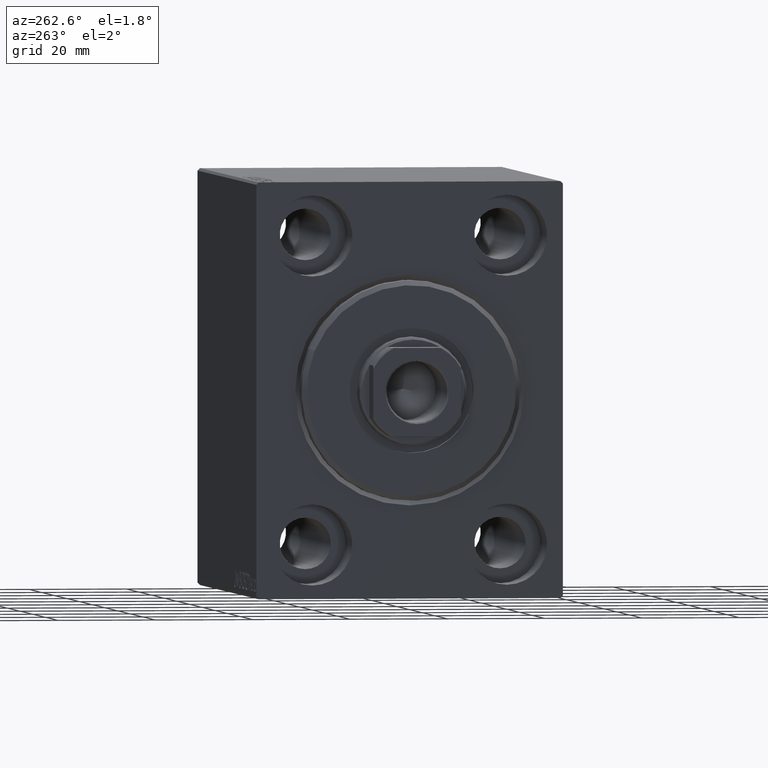
[diagram: clean part render]
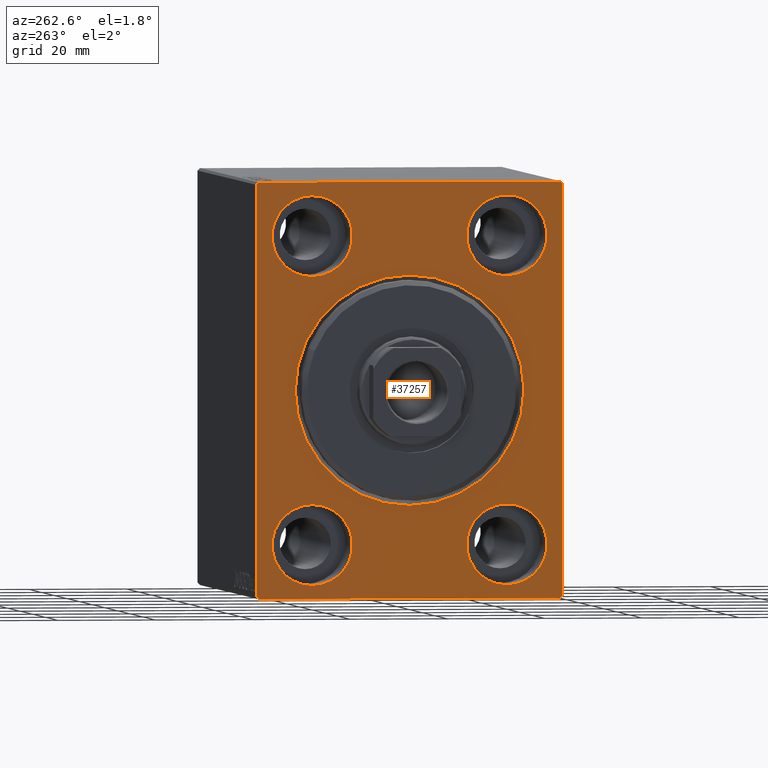
[diagram: same view with one face highlighted and labeled with its STEP entity id]
A machine part, auxiliary view. The second image highlights one B-rep face of the part: STEP entity #37257.
In plain terms, the highlighted planar face has unit normal (1, 0, 0).
Its self-contained STEP definition (entity closure, byte-faithful):
#207 = VERTEX_POINT ( 'NONE', #4660 ) ;
#1066 = ORIENTED_EDGE ( 'NONE', *, *, #25967, .F. ) ;
#1385 = CARTESIAN_POINT ( 'NONE',  ( 0.000000000000000000, -20.00000000000000355, -39.74999999999999289 ) ) ;
#1735 = DIRECTION ( 'NONE',  ( 1.000000000000000000, 0.000000000000000000, 0.000000000000000000 ) ) ;
#2210 = CARTESIAN_POINT ( 'NONE',  ( 0.000000000000000000, -19.99999999999999645, 31.50000000000000000 ) ) ;
#2308 = CIRCLE ( 'NONE', #24195, 8.249999999999992895 ) ;
#2932 = CARTESIAN_POINT ( 'NONE',  ( 0.000000000000000000, -31.50000000000000000, -42.00000000000002132 ) ) ;
#3009 = AXIS2_PLACEMENT_3D ( 'NONE', #37466, #10075, #27281 ) ;
#3612 = EDGE_CURVE ( 'NONE', #24326, #12554, #16258, .T. ) ;
#3616 = ORIENTED_EDGE ( 'NONE', *, *, #34001, .F. ) ;
#3667 = DIRECTION ( 'NONE',  ( -0.000000000000000000, 0.7071067811865376918, -0.7071067811865574537 ) ) ;
#3835 = VERTEX_POINT ( 'NONE', #27030 ) ;
#4030 = AXIS2_PLACEMENT_3D ( 'NONE', #18389, #11559, #32110 ) ;
#4573 = EDGE_CURVE ( 'NONE', #14653, #37526, #30688, .T. ) ;
#4660 = CARTESIAN_POINT ( 'NONE',  ( 0.000000000000000000, 31.00000000000002842, -42.50000000000000711 ) ) ;
#4705 = FACE_BOUND ( 'NONE', #33453, .T. ) ;
#4713 = VERTEX_POINT ( 'NONE', #5273 ) ;
#4748 = EDGE_CURVE ( 'NONE', #24999, #12858, #20451, .T. ) ;
#4978 = VECTOR ( 'NONE', #3667, 999.9999999999998863 ) ;
#5094 = ORIENTED_EDGE ( 'NONE', *, *, #3612, .T. ) ;
#5273 = CARTESIAN_POINT ( 'NONE',  ( 0.000000000000000000, -31.00000000000002842, -42.50000000000000711 ) ) ;
#5775 = VECTOR ( 'NONE', #39628, 1000.000000000000000 ) ;
#5918 = VERTEX_POINT ( 'NONE', #2932 ) ;
#7303 = CARTESIAN_POINT ( 'NONE',  ( 0.000000000000000000, -20.00000000000000355, -23.24999999999999289 ) ) ;
#7466 = CIRCLE ( 'NONE', #9589, 23.50000000000001776 ) ;
#7482 = DIRECTION ( 'NONE',  ( -1.000000000000000000, 0.000000000000000000, 0.000000000000000000 ) ) ;
#8268 = EDGE_CURVE ( 'NONE', #24999, #37526, #32121, .T. ) ;
#9589 = AXIS2_PLACEMENT_3D ( 'NONE', #31347, #1735, #14555 ) ;
#10075 = DIRECTION ( 'NONE',  ( -1.000000000000000000, 0.000000000000000000, 0.000000000000000000 ) ) ;
#10164 = AXIS2_PLACEMENT_3D ( 'NONE', #17206, #27598, #41101 ) ;
#10381 = ORIENTED_EDGE ( 'NONE', *, *, #23710, .F. ) ;
#10498 = EDGE_CURVE ( 'NONE', #37179, #15232, #26297, .T. ) ;
#10561 = DIRECTION ( 'NONE',  ( 0.000000000000000000, 0.000000000000000000, 1.000000000000000000 ) ) ;
#10694 = CARTESIAN_POINT ( 'NONE',  ( 0.000000000000000000, 20.00000000000000355, 39.74999999999999289 ) ) ;
#10780 = VECTOR ( 'NONE', #13268, 1000.000000000000000 ) ;
#11020 = CARTESIAN_POINT ( 'NONE',  ( 0.000000000000000000, 19.99999999999999645, -31.49999999999999289 ) ) ;
#11064 = AXIS2_PLACEMENT_3D ( 'NONE', #14053, #24220, #16708 ) ;
#11510 = ORIENTED_EDGE ( 'NONE', *, *, #27783, .F. ) ;
#11559 = DIRECTION ( 'NONE',  ( 1.000000000000000000, 0.000000000000000000, 0.000000000000000000 ) ) ;
#11846 = CARTESIAN_POINT ( 'NONE',  ( 0.000000000000000000, 0.000000000000000000, 0.000000000000000000 ) ) ;
#11920 = VERTEX_POINT ( 'NONE', #24545 ) ;
#12280 = DIRECTION ( 'NONE',  ( 1.000000000000000000, 0.000000000000000000, 0.000000000000000000 ) ) ;
#12554 = VERTEX_POINT ( 'NONE', #40806 ) ;
#12593 = ORIENTED_EDGE ( 'NONE', *, *, #26946, .F. ) ;
#12832 = ORIENTED_EDGE ( 'NONE', *, *, #41141, .F. ) ;
#12858 = VERTEX_POINT ( 'NONE', #42677 ) ;
#13014 = VECTOR ( 'NONE', #19556, 1000.000000000000114 ) ;
#13238 = CARTESIAN_POINT ( 'NONE',  ( 0.000000000000000000, -20.00000000000000355, -31.49999999999999289 ) ) ;
#13268 = DIRECTION ( 'NONE',  ( 0.000000000000000000, 1.000000000000000000, 0.000000000000000000 ) ) ;
#14043 = CARTESIAN_POINT ( 'NONE',  ( 0.000000000000000000, -31.50000000000000000, 41.99999999999997868 ) ) ;
#14053 = CARTESIAN_POINT ( 'NONE',  ( 0.000000000000000000, 19.99999999999999645, -31.49999999999999289 ) ) ;
#14555 = DIRECTION ( 'NONE',  ( 0.000000000000000000, 0.000000000000000000, -1.000000000000000000 ) ) ;
#14653 = VERTEX_POINT ( 'NONE', #14043 ) ;
#15164 = AXIS2_PLACEMENT_3D ( 'NONE', #20362, #20805, #33661 ) ;
#15232 = VERTEX_POINT ( 'NONE', #7303 ) ;
#15470 = EDGE_CURVE ( 'NONE', #4713, #5918, #19342, .T. ) ;
#15517 = FACE_BOUND ( 'NONE', #37494, .T. ) ;
#15523 = DIRECTION ( 'NONE',  ( 0.000000000000000000, 0.000000000000000000, -1.000000000000000000 ) ) ;
#15904 = DIRECTION ( 'NONE',  ( -1.000000000000000000, 0.000000000000000000, 0.000000000000000000 ) ) ;
#16095 = EDGE_LOOP ( 'NONE', ( #3616, #12832 ) ) ;
#16118 = CARTESIAN_POINT ( 'NONE',  ( 0.000000000000000000, -19.99999999999999645, 23.25000000000000355 ) ) ;
#16119 = ORIENTED_EDGE ( 'NONE', *, *, #15470, .T. ) ;
#16237 = CARTESIAN_POINT ( 'NONE',  ( 0.000000000000000000, -31.00000000000002842, -42.50000000000000711 ) ) ;
#16258 = CIRCLE ( 'NONE', #37440, 23.50000000000001776 ) ;
#16322 = DIRECTION ( 'NONE',  ( -1.000000000000000000, 0.000000000000000000, 0.000000000000000000 ) ) ;
#16564 = CIRCLE ( 'NONE', #15164, 8.249999999999992895 ) ;
#16648 = DIRECTION ( 'NONE',  ( 0.000000000000000000, -0.7071067811865573427, -0.7071067811865376918 ) ) ;
#16708 = DIRECTION ( 'NONE',  ( 0.000000000000000000, 0.000000000000000000, 1.000000000000000000 ) ) ;
#16923 = EDGE_LOOP ( 'NONE', ( #27704, #27215 ) ) ;
#17206 = CARTESIAN_POINT ( 'NONE',  ( 0.000000000000000000, 20.00000000000000355, 31.50000000000000000 ) ) ;
#17393 = CARTESIAN_POINT ( 'NONE',  ( 0.000000000000000000, 19.99999999999999645, -23.24999999999999289 ) ) ;
#17400 = EDGE_CURVE ( 'NONE', #19836, #36899, #16564, .T. ) ;
#17856 = DIRECTION ( 'NONE',  ( 0.000000000000000000, 0.000000000000000000, 1.000000000000000000 ) ) ;
#18389 = CARTESIAN_POINT ( 'NONE',  ( 0.000000000000000000, 0.000000000000000000, 0.000000000000000000 ) ) ;
#18892 = EDGE_CURVE ( 'NONE', #15232, #37179, #28712, .T. ) ;
#19206 = EDGE_CURVE ( 'NONE', #11920, #207, #28899, .T. ) ;
#19342 = LINE ( 'NONE', #16237, #13014 ) ;
#19556 = DIRECTION ( 'NONE',  ( -0.000000000000000000, -0.7071067811865376918, 0.7071067811865573427 ) ) ;
#19562 = EDGE_CURVE ( 'NONE', #14653, #5918, #25914, .T. ) ;
#19836 = VERTEX_POINT ( 'NONE', #16118 ) ;
#20028 = CARTESIAN_POINT ( 'NONE',  ( 0.000000000000000000, 31.00000000000000000, 42.50000000000000711 ) ) ;
#20222 = AXIS2_PLACEMENT_3D ( 'NONE', #2210, #15904, #43319 ) ;
#20362 = CARTESIAN_POINT ( 'NONE',  ( 0.000000000000000000, -19.99999999999999645, 31.50000000000000000 ) ) ;
#20451 = LINE ( 'NONE', #20028, #4978 ) ;
#20513 = DIRECTION ( 'NONE',  ( 0.000000000000000000, -1.632680918566406300E-16, 1.000000000000000000 ) ) ;
#20805 = DIRECTION ( 'NONE',  ( -1.000000000000000000, 0.000000000000000000, 0.000000000000000000 ) ) ;
#21285 = ORIENTED_EDGE ( 'NONE', *, *, #19562, .F. ) ;
#21784 = VERTEX_POINT ( 'NONE', #28160 ) ;
#22149 = FACE_BOUND ( 'NONE', #28532, .T. ) ;
#22445 = CARTESIAN_POINT ( 'NONE',  ( 0.000000000000000000, 20.00000000000000355, 31.50000000000000000 ) ) ;
#22552 = LINE ( 'NONE', #36051, #38387 ) ;
#22656 = DIRECTION ( 'NONE',  ( 0.000000000000000000, 0.000000000000000000, 1.000000000000000000 ) ) ;
#22994 = LINE ( 'NONE', #32958, #10780 ) ;
#23081 = CIRCLE ( 'NONE', #11064, 8.250000000000000000 ) ;
#23555 = CIRCLE ( 'NONE', #10164, 8.249999999999992895 ) ;
#23710 = EDGE_CURVE ( 'NONE', #21784, #31115, #2308, .T. ) ;
#24046 = ORIENTED_EDGE ( 'NONE', *, *, #40843, .F. ) ;
#24195 = AXIS2_PLACEMENT_3D ( 'NONE', #22445, #29077, #22656 ) ;
#24220 = DIRECTION ( 'NONE',  ( -1.000000000000000000, 0.000000000000000000, 0.000000000000000000 ) ) ;
#24282 = ORIENTED_EDGE ( 'NONE', *, *, #8268, .F. ) ;
#24326 = VERTEX_POINT ( 'NONE', #38224 ) ;
#24545 = CARTESIAN_POINT ( 'NONE',  ( 0.000000000000000000, 31.50000000000001421, -42.00000000000003553 ) ) ;
#24855 = ORIENTED_EDGE ( 'NONE', *, *, #4573, .T. ) ;
#24999 = VERTEX_POINT ( 'NONE', #38783 ) ;
#25318 = DIRECTION ( 'NONE',  ( 0.000000000000000000, 0.000000000000000000, -1.000000000000000000 ) ) ;
#25907 = FACE_BOUND ( 'NONE', #16095, .T. ) ;
#25914 = LINE ( 'NONE', #26332, #28639 ) ;
#25967 = EDGE_CURVE ( 'NONE', #4713, #207, #22994, .T. ) ;
#26297 = CIRCLE ( 'NONE', #3009, 8.250000000000000000 ) ;
#26332 = CARTESIAN_POINT ( 'NONE',  ( 0.000000000000000000, -31.50000000000000000, 42.49999999999999289 ) ) ;
#26716 = ORIENTED_EDGE ( 'NONE', *, *, #34048, .T. ) ;
#26719 = CARTESIAN_POINT ( 'NONE',  ( 0.000000000000000000, -31.50000000000000000, 41.99999999999997868 ) ) ;
#26917 = ORIENTED_EDGE ( 'NONE', *, *, #17400, .F. ) ;
#26946 = EDGE_CURVE ( 'NONE', #11920, #12858, #22552, .T. ) ;
#27030 = CARTESIAN_POINT ( 'NONE',  ( 0.000000000000000000, 19.99999999999999645, -39.74999999999999289 ) ) ;
#27215 = ORIENTED_EDGE ( 'NONE', *, *, #10498, .F. ) ;
#27281 = DIRECTION ( 'NONE',  ( 0.000000000000000000, 0.000000000000000000, 1.000000000000000000 ) ) ;
#27598 = DIRECTION ( 'NONE',  ( -1.000000000000000000, 0.000000000000000000, 0.000000000000000000 ) ) ;
#27704 = ORIENTED_EDGE ( 'NONE', *, *, #18892, .F. ) ;
#27783 = EDGE_CURVE ( 'NONE', #31115, #21784, #23555, .T. ) ;
#27810 = DIRECTION ( 'NONE',  ( -0.000000000000000000, 0.7071067811865474617, 0.7071067811865474617 ) ) ;
#28160 = CARTESIAN_POINT ( 'NONE',  ( 0.000000000000000000, 20.00000000000000355, 23.25000000000000355 ) ) ;
#28525 = ORIENTED_EDGE ( 'NONE', *, *, #19206, .T. ) ;
#28532 = EDGE_LOOP ( 'NONE', ( #24046, #26917 ) ) ;
#28639 = VECTOR ( 'NONE', #15523, 1000.000000000000000 ) ;
#28712 = CIRCLE ( 'NONE', #37910, 8.250000000000000000 ) ;
#28899 = LINE ( 'NONE', #35323, #42055 ) ;
#29077 = DIRECTION ( 'NONE',  ( -1.000000000000000000, 0.000000000000000000, 0.000000000000000000 ) ) ;
#30059 = AXIS2_PLACEMENT_3D ( 'NONE', #11020, #7482, #17856 ) ;
#30167 = ORIENTED_EDGE ( 'NONE', *, *, #4748, .T. ) ;
#30688 = LINE ( 'NONE', #26719, #31796 ) ;
#31115 = VERTEX_POINT ( 'NONE', #10694 ) ;
#31347 = CARTESIAN_POINT ( 'NONE',  ( 0.000000000000000000, 0.000000000000000000, 0.000000000000000000 ) ) ;
#31796 = VECTOR ( 'NONE', #27810, 1000.000000000000114 ) ;
#32110 = DIRECTION ( 'NONE',  ( 0.000000000000000000, 0.000000000000000000, -1.000000000000000000 ) ) ;
#32121 = LINE ( 'NONE', #38764, #5775 ) ;
#32958 = CARTESIAN_POINT ( 'NONE',  ( 0.000000000000000000, -31.50000000000000000, -42.50000000000000711 ) ) ;
#33453 = EDGE_LOOP ( 'NONE', ( #11510, #10381 ) ) ;
#33661 = DIRECTION ( 'NONE',  ( 0.000000000000000000, 0.000000000000000000, 1.000000000000000000 ) ) ;
#34001 = EDGE_CURVE ( 'NONE', #39374, #3835, #37109, .T. ) ;
#34048 = EDGE_CURVE ( 'NONE', #12554, #24326, #7466, .T. ) ;
#34269 = CARTESIAN_POINT ( 'NONE',  ( 0.000000000000000000, -30.99999999999998579, 42.49999999999999289 ) ) ;
#35323 = CARTESIAN_POINT ( 'NONE',  ( 0.000000000000000000, 31.50000000000001421, -42.00000000000003553 ) ) ;
#35430 = FACE_BOUND ( 'NONE', #16923, .T. ) ;
#35657 = FACE_OUTER_BOUND ( 'NONE', #38060, .T. ) ;
#35797 = CIRCLE ( 'NONE', #20222, 8.249999999999992895 ) ;
#36051 = CARTESIAN_POINT ( 'NONE',  ( 0.000000000000000000, 31.50000000000001421, -42.50000000000000711 ) ) ;
#36899 = VERTEX_POINT ( 'NONE', #40799 ) ;
#37109 = CIRCLE ( 'NONE', #30059, 8.250000000000000000 ) ;
#37179 = VERTEX_POINT ( 'NONE', #1385 ) ;
#37257 = ADVANCED_FACE ( 'NONE', ( #15517, #25907, #22149, #4705, #35430, #35657 ), #38535, .F. ) ;
#37440 = AXIS2_PLACEMENT_3D ( 'NONE', #11846, #12280, #25318 ) ;
#37466 = CARTESIAN_POINT ( 'NONE',  ( 0.000000000000000000, -20.00000000000000355, -31.49999999999999289 ) ) ;
#37494 = EDGE_LOOP ( 'NONE', ( #5094, #26716 ) ) ;
#37526 = VERTEX_POINT ( 'NONE', #34269 ) ;
#37910 = AXIS2_PLACEMENT_3D ( 'NONE', #13238, #16322, #10561 ) ;
#38060 = EDGE_LOOP ( 'NONE', ( #21285, #24855, #24282, #30167, #12593, #28525, #1066, #16119 ) ) ;
#38224 = CARTESIAN_POINT ( 'NONE',  ( 0.000000000000000000, 0.000000000000000000, 23.50000000000001776 ) ) ;
#38387 = VECTOR ( 'NONE', #20513, 1000.000000000000000 ) ;
#38535 = PLANE ( 'NONE',  #4030 ) ;
#38764 = CARTESIAN_POINT ( 'NONE',  ( 0.000000000000000000, 31.50000000000000000, 42.50000000000000711 ) ) ;
#38783 = CARTESIAN_POINT ( 'NONE',  ( 0.000000000000000000, 31.00000000000000000, 42.50000000000000711 ) ) ;
#39374 = VERTEX_POINT ( 'NONE', #17393 ) ;
#39628 = DIRECTION ( 'NONE',  ( 0.000000000000000000, -1.000000000000000000, -2.202823461557850341E-16 ) ) ;
#40799 = CARTESIAN_POINT ( 'NONE',  ( 0.000000000000000000, -19.99999999999999645, 39.74999999999999289 ) ) ;
#40806 = CARTESIAN_POINT ( 'NONE',  ( 0.000000000000000000, 2.877919977996282293E-15, -23.50000000000001776 ) ) ;
#40843 = EDGE_CURVE ( 'NONE', #36899, #19836, #35797, .T. ) ;
#41101 = DIRECTION ( 'NONE',  ( 0.000000000000000000, 0.000000000000000000, 1.000000000000000000 ) ) ;
#41141 = EDGE_CURVE ( 'NONE', #3835, #39374, #23081, .T. ) ;
#42055 = VECTOR ( 'NONE', #16648, 1000.000000000000114 ) ;
#42677 = CARTESIAN_POINT ( 'NONE',  ( 0.000000000000000000, 31.50000000000000000, 41.99999999999999289 ) ) ;
#43319 = DIRECTION ( 'NONE',  ( 0.000000000000000000, 0.000000000000000000, 1.000000000000000000 ) ) ;